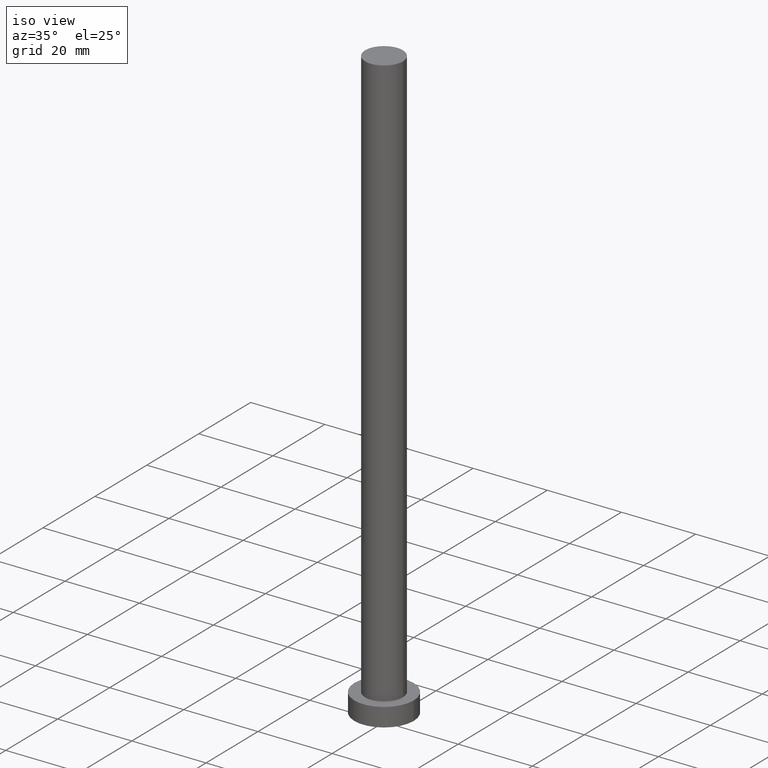
[diagram: clean part render]
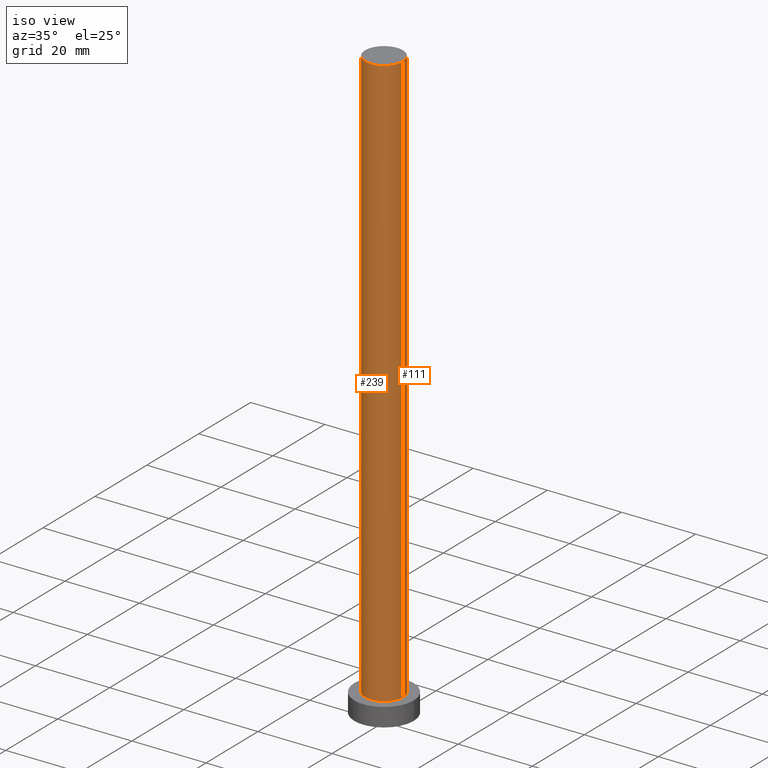
[diagram: same view with one multi-face feature highlighted, each face labeled with its STEP entity id]
A machine part, iso view. The highlighted faces form ONE feature: a constant-radius fillet chain: 2 tangent blend faces with common blend radius 5.1 mm. The faces share edges in the B-rep.
Their STEP definitions:
[1] entity #239 (Cylinder):
#8 = CARTESIAN_POINT ( 'NONE',  ( 5.100000000000001421, 6.245698675651502811E-16, 160.0000000000000000 ) ) ;
#14 = DIRECTION ( 'NONE',  ( -0.000000000000000000, -0.000000000000000000, -1.000000000000000000 ) ) ;
#16 = DIRECTION ( 'NONE',  ( 0.000000000000000000, 0.000000000000000000, 1.000000000000000000 ) ) ;
#17 = EDGE_CURVE ( 'NONE', #92, #36, #167, .T. ) ;
#22 = ORIENTED_EDGE ( 'NONE', *, *, #194, .F. ) ;
#25 = EDGE_CURVE ( 'NONE', #130, #110, #45, .T. ) ;
#27 = LINE ( 'NONE', #189, #210 ) ;
#36 = VERTEX_POINT ( 'NONE', #148 ) ;
#40 = DIRECTION ( 'NONE',  ( -1.000000000000000000, 0.000000000000000000, 0.000000000000000000 ) ) ;
#45 = CIRCLE ( 'NONE', #136, 5.100000000000001421 ) ;
#53 = ORIENTED_EDGE ( 'NONE', *, *, #25, .F. ) ;
#92 = VERTEX_POINT ( 'NONE', #142 ) ;
#93 = CARTESIAN_POINT ( 'NONE',  ( 0.000000000000000000, 0.000000000000000000, 160.0000000000000000 ) ) ;
#108 = CARTESIAN_POINT ( 'NONE',  ( 0.000000000000000000, 0.000000000000000000, 160.0000000000000000 ) ) ;
#110 = VERTEX_POINT ( 'NONE', #168 ) ;
#114 = EDGE_CURVE ( 'NONE', #130, #92, #27, .T. ) ;
#118 = VECTOR ( 'NONE', #166, 1000.000000000000000 ) ;
#125 = CARTESIAN_POINT ( 'NONE',  ( 0.000000000000000000, 0.000000000000000000, 5.000000000000000000 ) ) ;
#128 = DIRECTION ( 'NONE',  ( 1.000000000000000000, 0.000000000000000000, 0.000000000000000000 ) ) ;
#130 = VERTEX_POINT ( 'NONE', #225 ) ;
#136 = AXIS2_PLACEMENT_3D ( 'NONE', #108, #16, #128 ) ;
#142 = CARTESIAN_POINT ( 'NONE',  ( -5.100000000000001421, 0.000000000000000000, 5.000000000000000000 ) ) ;
#147 = DIRECTION ( 'NONE',  ( 1.000000000000000000, 0.000000000000000000, 0.000000000000000000 ) ) ;
#148 = CARTESIAN_POINT ( 'NONE',  ( 5.100000000000001421, 6.245698675651502811E-16, 5.000000000000000000 ) ) ;
#150 = EDGE_LOOP ( 'NONE', ( #22, #53, #197, #228 ) ) ;
#160 = DIRECTION ( 'NONE',  ( -0.000000000000000000, -0.000000000000000000, -1.000000000000000000 ) ) ;
#163 = CYLINDRICAL_SURFACE ( 'NONE', #215, 5.100000000000001421 ) ;
#164 = LINE ( 'NONE', #8, #118 ) ;
#166 = DIRECTION ( 'NONE',  ( -0.000000000000000000, -0.000000000000000000, -1.000000000000000000 ) ) ;
#167 = CIRCLE ( 'NONE', #217, 5.100000000000001421 ) ;
#168 = CARTESIAN_POINT ( 'NONE',  ( 5.100000000000001421, 6.245698675651502811E-16, 160.0000000000000000 ) ) ;
#172 = DIRECTION ( 'NONE',  ( 0.000000000000000000, 0.000000000000000000, 1.000000000000000000 ) ) ;
#189 = CARTESIAN_POINT ( 'NONE',  ( -5.100000000000001421, 0.000000000000000000, 160.0000000000000000 ) ) ;
#194 = EDGE_CURVE ( 'NONE', #110, #36, #164, .T. ) ;
#197 = ORIENTED_EDGE ( 'NONE', *, *, #114, .T. ) ;
#198 = FACE_OUTER_BOUND ( 'NONE', #150, .T. ) ;
#210 = VECTOR ( 'NONE', #14, 1000.000000000000000 ) ;
#215 = AXIS2_PLACEMENT_3D ( 'NONE', #93, #160, #40 ) ;
#217 = AXIS2_PLACEMENT_3D ( 'NONE', #125, #172, #147 ) ;
#225 = CARTESIAN_POINT ( 'NONE',  ( -5.100000000000001421, 0.000000000000000000, 160.0000000000000000 ) ) ;
#228 = ORIENTED_EDGE ( 'NONE', *, *, #17, .T. ) ;
#239 = ADVANCED_FACE ( 'NONE', ( #198 ), #163, .T. ) ;
[2] entity #111 (Cylinder):
#8 = CARTESIAN_POINT ( 'NONE',  ( 5.100000000000001421, 6.245698675651502811E-16, 160.0000000000000000 ) ) ;
#10 = CARTESIAN_POINT ( 'NONE',  ( 0.000000000000000000, 0.000000000000000000, 160.0000000000000000 ) ) ;
#14 = DIRECTION ( 'NONE',  ( -0.000000000000000000, -0.000000000000000000, -1.000000000000000000 ) ) ;
#27 = LINE ( 'NONE', #189, #210 ) ;
#29 = DIRECTION ( 'NONE',  ( 0.000000000000000000, 0.000000000000000000, 1.000000000000000000 ) ) ;
#33 = EDGE_CURVE ( 'NONE', #36, #92, #158, .T. ) ;
#36 = VERTEX_POINT ( 'NONE', #148 ) ;
#44 = FACE_OUTER_BOUND ( 'NONE', #90, .T. ) ;
#49 = ORIENTED_EDGE ( 'NONE', *, *, #219, .F. ) ;
#63 = CARTESIAN_POINT ( 'NONE',  ( 0.000000000000000000, 0.000000000000000000, 160.0000000000000000 ) ) ;
#68 = DIRECTION ( 'NONE',  ( 1.000000000000000000, 0.000000000000000000, 0.000000000000000000 ) ) ;
#71 = AXIS2_PLACEMENT_3D ( 'NONE', #10, #29, #193 ) ;
#73 = ORIENTED_EDGE ( 'NONE', *, *, #194, .T. ) ;
#83 = CARTESIAN_POINT ( 'NONE',  ( 0.000000000000000000, 0.000000000000000000, 5.000000000000000000 ) ) ;
#90 = EDGE_LOOP ( 'NONE', ( #49, #73, #214, #252 ) ) ;
#92 = VERTEX_POINT ( 'NONE', #142 ) ;
#98 = AXIS2_PLACEMENT_3D ( 'NONE', #63, #144, #227 ) ;
#104 = CYLINDRICAL_SURFACE ( 'NONE', #98, 5.100000000000001421 ) ;
#110 = VERTEX_POINT ( 'NONE', #168 ) ;
#111 = ADVANCED_FACE ( 'NONE', ( #44 ), #104, .T. ) ;
#114 = EDGE_CURVE ( 'NONE', #130, #92, #27, .T. ) ;
#118 = VECTOR ( 'NONE', #166, 1000.000000000000000 ) ;
#130 = VERTEX_POINT ( 'NONE', #225 ) ;
#142 = CARTESIAN_POINT ( 'NONE',  ( -5.100000000000001421, 0.000000000000000000, 5.000000000000000000 ) ) ;
#144 = DIRECTION ( 'NONE',  ( -0.000000000000000000, -0.000000000000000000, -1.000000000000000000 ) ) ;
#148 = CARTESIAN_POINT ( 'NONE',  ( 5.100000000000001421, 6.245698675651502811E-16, 5.000000000000000000 ) ) ;
#158 = CIRCLE ( 'NONE', #175, 5.100000000000001421 ) ;
#164 = LINE ( 'NONE', #8, #118 ) ;
#166 = DIRECTION ( 'NONE',  ( -0.000000000000000000, -0.000000000000000000, -1.000000000000000000 ) ) ;
#168 = CARTESIAN_POINT ( 'NONE',  ( 5.100000000000001421, 6.245698675651502811E-16, 160.0000000000000000 ) ) ;
#174 = DIRECTION ( 'NONE',  ( 0.000000000000000000, 0.000000000000000000, 1.000000000000000000 ) ) ;
#175 = AXIS2_PLACEMENT_3D ( 'NONE', #83, #174, #68 ) ;
#189 = CARTESIAN_POINT ( 'NONE',  ( -5.100000000000001421, 0.000000000000000000, 160.0000000000000000 ) ) ;
#193 = DIRECTION ( 'NONE',  ( 1.000000000000000000, 0.000000000000000000, 0.000000000000000000 ) ) ;
#194 = EDGE_CURVE ( 'NONE', #110, #36, #164, .T. ) ;
#195 = CIRCLE ( 'NONE', #71, 5.100000000000001421 ) ;
#210 = VECTOR ( 'NONE', #14, 1000.000000000000000 ) ;
#214 = ORIENTED_EDGE ( 'NONE', *, *, #33, .T. ) ;
#219 = EDGE_CURVE ( 'NONE', #110, #130, #195, .T. ) ;
#225 = CARTESIAN_POINT ( 'NONE',  ( -5.100000000000001421, 0.000000000000000000, 160.0000000000000000 ) ) ;
#227 = DIRECTION ( 'NONE',  ( -1.000000000000000000, 0.000000000000000000, 0.000000000000000000 ) ) ;
#252 = ORIENTED_EDGE ( 'NONE', *, *, #114, .F. ) ;